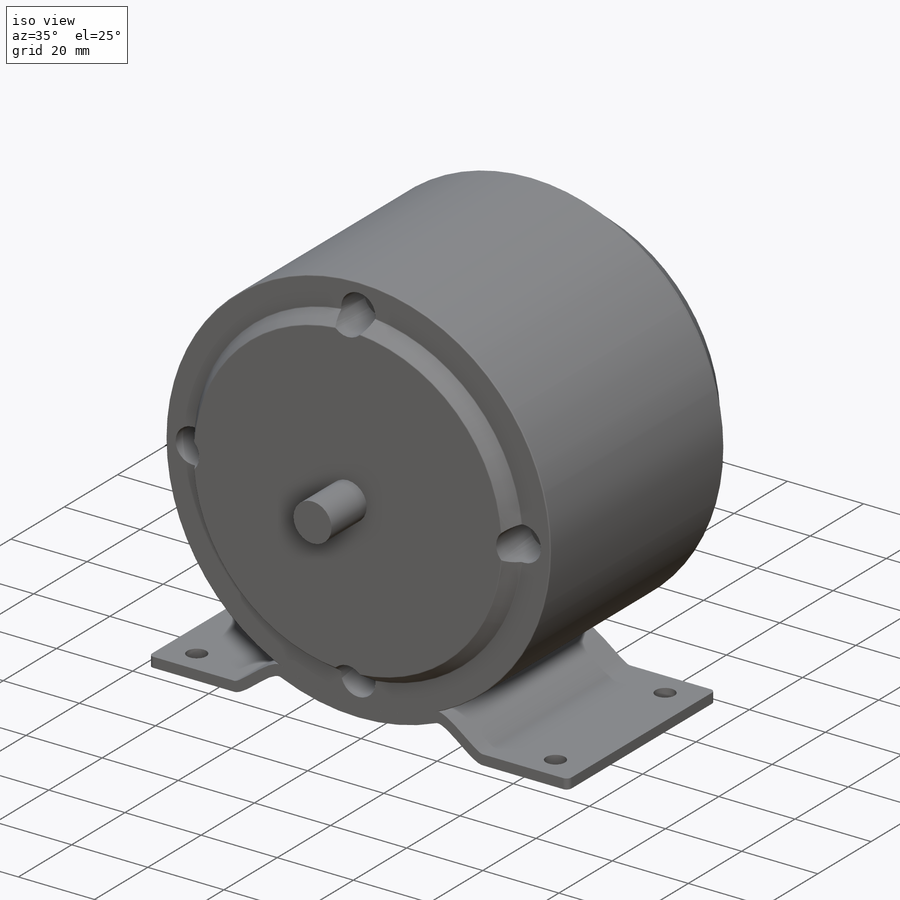
[diagram: iso view]
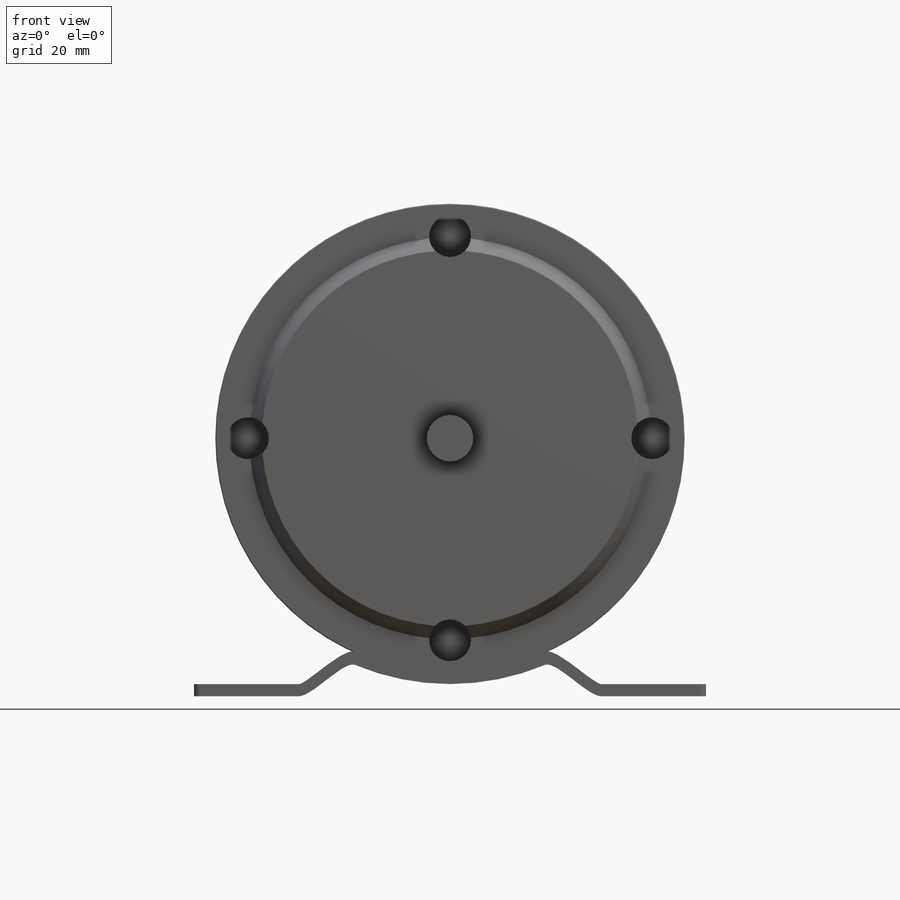
[diagram: front view]
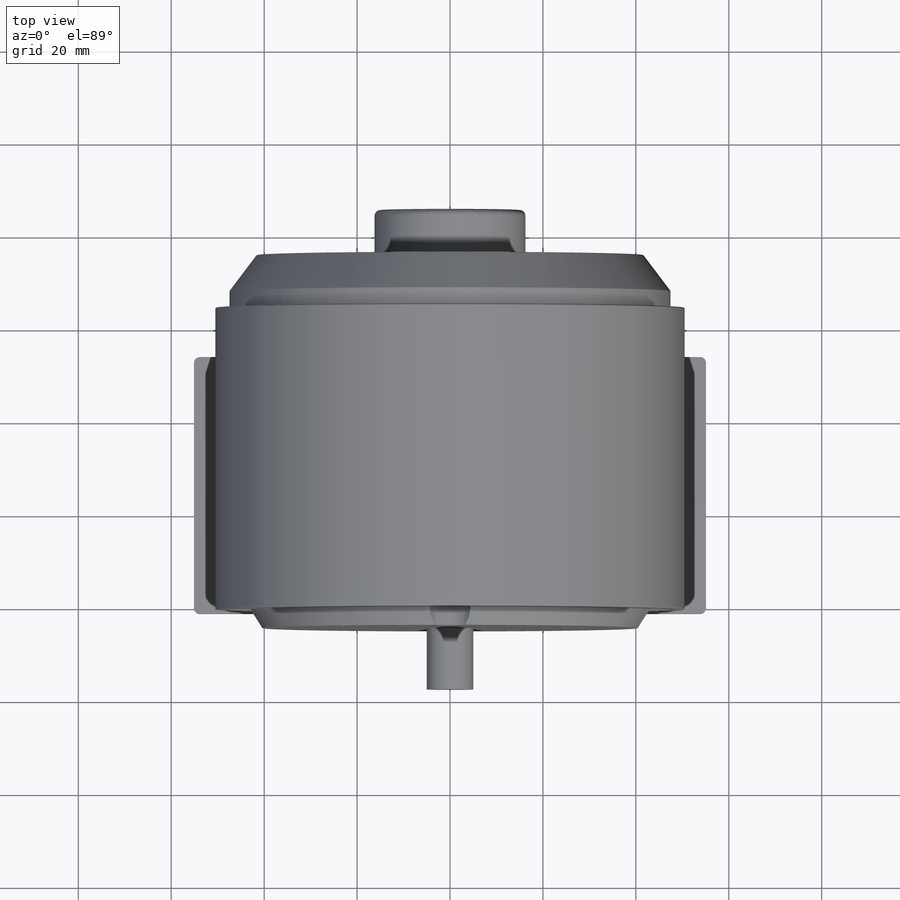
[diagram: top view]
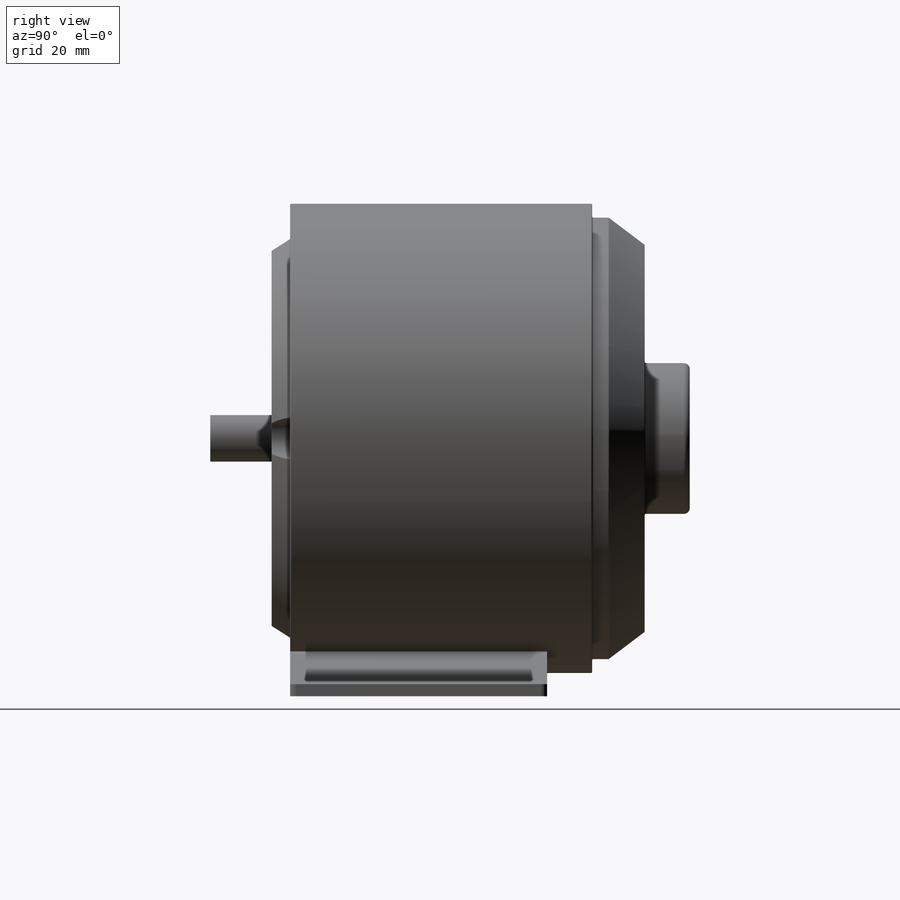
[diagram: right view]
SOLIDWORKS PART (.sldprt)
format: sldprt  version: not decoded by parser v0  size: 420,864 bytes
history: native  units: mm
features: sketch x6, cut_extrude x3, extrude x2, material x1, revolve x1, fillet x1 (+11 scaffold rows collapsed)
feature tree (25):
  scaffold x11  (default folders/planes/origin — collapsed)
  material  "Material <not specified>"
  sketch  "Sketch3"  dims[D12=0.254mm D13=1.27mm D1=90.0mm D2=4.0mm D3=40.5mm D4=50.5mm D5=7.35mm D6=16.25mm D7=9.7mm D8=25.4mm D9=65.0mm D10=3.55mm D11=3.0mm]
  revolve  "Revolve1"  Angle=360deg
  sketch  "Sketch4"  dims[D1=9.0mm D2=43.5mm D3=4.0]
  cut_extrude  "Cut-Extrude1"  Depth=12.7mm
  sketch  "Sketch6"  dims[D1=10.0mm]
  extrude  "Boss-Extrude3"  Depth=13.2mm
  sketch  "Sketch8"  dims[c1.D4=~51.969678mm c1.D2=52.866mm c1.D1=40.76mm c2.D2=10.86mm c2.D3=2.62mm c2.D4=2.62mm c2.D5=12.18mm c2.D6=110.2mm c3.D2=55.5mm]
  extrude  "Boss-Extrude6"  Depth=55.3mm
  fillet  "Fillet1"  Radius=1.27mm
  sketch  "Sketch9"  dims[c1.D1=5.0mm c1.D2=5.0mm c1.D3=8.0mm c1.D4=~8.003681mm c2.D4=90.0deg c3.D4=6.72mm c3.D1=8.23mm c3.D5=7.14mm]
  cut_extrude  "Cut-Extrude2"  [1 undecoded]
  sketch  "Sketch10"  dims[D1=5.0mm D2=6.72mm D3=7.95mm D4=8.2mm D5=6.94mm]
  cut_extrude  "Cut-Extrude3"  [1 undecoded]
decode coverage: 11 of 13 modeling features carry decoded parameters
note: ~ marks probable driven/reference dimensions
note: 2 parameter values undecoded
note: suppression state not decoded; provenance and decode notes live in map.json
